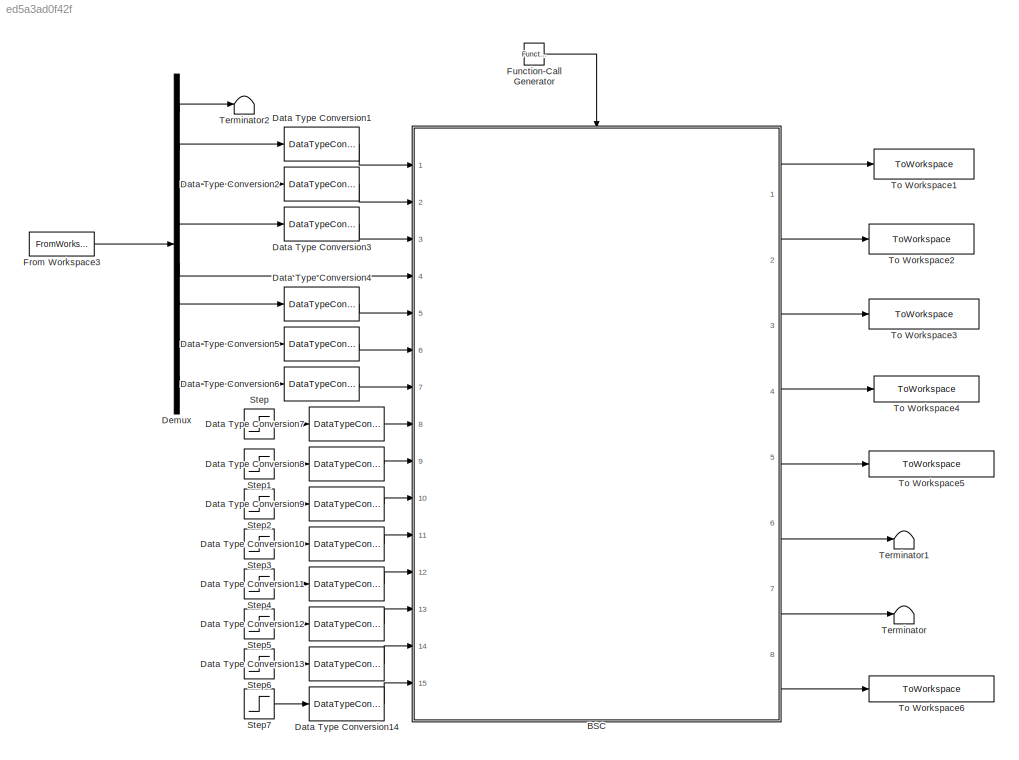
MODEL slx_ed5a3ad0f42f
KIND model
CONFIG AbsTol = auto
CONFIG FixedStep = step_size
CONFIG MaxStep = auto
CONFIG MinStep = auto
CONFIG RelTol = 1e-3
CONFIG SampleTimeConstraint = Unconstrained
CONFIG Solver = ode4
CONFIG SolverMode = Auto
CONFIG SolverName = ode4
CONFIG StartTime = 0.0
CONFIG StopTime = final_time
BLOCK [ModelReference] BSC
  CopyOfModelName = BSC.slx
  ModelNameDialog = BSC.slx
  ModelReferenceVersion = 1.220
  Ports = [15, 8, 0, 1]
  TriggerPortName = Trigger
  TriggerPortStatesWhenEnabling = held
  TriggerPortTriggerType = function-call
  Variant = off
BLOCK [DataTypeConversion] Data Type Conversion1
  OutDataTypeStr = uint8
  RndMeth = Floor
  SaturateOnIntegerOverflow = off
BLOCK [DataTypeConversion] Data Type Conversion10
  OutDataTypeStr = uint8
  RndMeth = Floor
  SaturateOnIntegerOverflow = off
BLOCK [DataTypeConversion] Data Type Conversion11
  OutDataTypeStr = uint8
  RndMeth = Floor
  SaturateOnIntegerOverflow = off
BLOCK [DataTypeConversion] Data Type Conversion12
  OutDataTypeStr = uint8
  RndMeth = Floor
  SaturateOnIntegerOverflow = off
BLOCK [DataTypeConversion] Data Type Conversion13
  OutDataTypeStr = uint8
  RndMeth = Floor
  SaturateOnIntegerOverflow = off
BLOCK [DataTypeConversion] Data Type Conversion14
  OutDataTypeStr = uint8
  RndMeth = Floor
  SaturateOnIntegerOverflow = off
BLOCK [DataTypeConversion] Data Type Conversion2
  OutDataTypeStr = uint8
  RndMeth = Floor
  SaturateOnIntegerOverflow = off
BLOCK [DataTypeConversion] Data Type Conversion3
  OutDataTypeStr = uint8
  RndMeth = Floor
  SaturateOnIntegerOverflow = off
BLOCK [DataTypeConversion] Data Type Conversion4
  OutDataTypeStr = uint8
  RndMeth = Floor
  SaturateOnIntegerOverflow = off
BLOCK [DataTypeConversion] Data Type Conversion5
  OutDataTypeStr = uint8
  RndMeth = Floor
  SaturateOnIntegerOverflow = off
BLOCK [DataTypeConversion] Data Type Conversion6
  OutDataTypeStr = uint8
  RndMeth = Floor
  SaturateOnIntegerOverflow = off
BLOCK [DataTypeConversion] Data Type Conversion7
  OutDataTypeStr = uint8
  RndMeth = Floor
  SaturateOnIntegerOverflow = off
BLOCK [DataTypeConversion] Data Type Conversion8
  OutDataTypeStr = uint8
  RndMeth = Floor
  SaturateOnIntegerOverflow = off
BLOCK [DataTypeConversion] Data Type Conversion9
  OutDataTypeStr = uint8
  RndMeth = Floor
  SaturateOnIntegerOverflow = off
BLOCK [Demux] Demux
  DisplayOption = bar
  Outputs = 8
  Ports = [1, 8]
BLOCK [FromWorkspace] From Workspace3
  SampleTime = 0
  VariableName = test_set
  ZeroCross = on
BLOCK [Reference] Function-Call Generator  REF=simulink/Ports &
Subsystems/Function-Call
Generator
  Ports = [0, 1]
  SourceBlock = simulink/Ports &\nSubsystems/Function-Call\nGenerator
  SourceType = Function-Call Generator
BLOCK [Step] Step
  After = 0
  Time = 0
  VectorParams1D = off
BLOCK [Step] Step1
  After = 0
  Time = 0
  VectorParams1D = off
BLOCK [Step] Step2
  After = 0
  Time = 0
  VectorParams1D = off
BLOCK [Step] Step3
  After = 0
  Time = 0
  VectorParams1D = off
BLOCK [Step] Step4
  After = 0
  Time = 0
  VectorParams1D = off
BLOCK [Step] Step5
  After = 0
  Time = 0
  VectorParams1D = off
BLOCK [Step] Step6
  After = 0
  Time = 0
  VectorParams1D = off
BLOCK [Step] Step7
  After = 0
  Time = 0
  VectorParams1D = off
BLOCK [Terminator] Terminator
BLOCK [Terminator] Terminator1
BLOCK [Terminator] Terminator2
BLOCK [ToWorkspace] To Workspace1
  FixptAsFi = on
  MaxDataPoints = inf
  Ports = [1]
  SampleTime = -1
  Save2DSignal = 3-D array (concatenate along third dimension)
  SaveFormat = Timeseries
  VariableName = CVTN_supply_signal
BLOCK [ToWorkspace] To Workspace2
  FixptAsFi = on
  MaxDataPoints = inf
  Ports = [1]
  SampleTime = -1
  Save2DSignal = 3-D array (concatenate along third dimension)
  SaveFormat = Timeseries
  VariableName = main_contactor_cmd
BLOCK [ToWorkspace] To Workspace3
  FixptAsFi = on
  MaxDataPoints = inf
  Ports = [1]
  SampleTime = -1
  Save2DSignal = 3-D array (concatenate along third dimension)
  SaveFormat = Timeseries
  VariableName = charger_contactor_cmd
BLOCK [ToWorkspace] To Workspace4
  FixptAsFi = on
  MaxDataPoints = inf
  Ports = [1]
  SampleTime = -1
  Save2DSignal = 3-D array (concatenate along third dimension)
  SaveFormat = Timeseries
  VariableName = sleep_mode
BLOCK [ToWorkspace] To Workspace5
  FixptAsFi = on
  MaxDataPoints = inf
  Ports = [1]
  SampleTime = -1
  Save2DSignal = 3-D array (concatenate along third dimension)
  SaveFormat = Timeseries
  VariableName = reason_to_open_contactor
BLOCK [ToWorkspace] To Workspace6
  FixptAsFi = on
  MaxDataPoints = inf
  Ports = [1]
  SampleTime = -1
  Save2DSignal = 3-D array (concatenate along third dimension)
  SaveFormat = Timeseries
  VariableName = fault_type
LINE BSC:1 -> To Workspace1:1
LINE BSC:2 -> To Workspace2:1
LINE BSC:3 -> To Workspace3:1
LINE BSC:4 -> To Workspace4:1
LINE BSC:5 -> To Workspace5:1
LINE BSC:6 -> Terminator1:1
LINE BSC:7 -> Terminator:1
LINE BSC:8 -> To Workspace6:1
LINE Data Type Conversion10:1 -> BSC:11
LINE Data Type Conversion11:1 -> BSC:12
LINE Data Type Conversion12:1 -> BSC:13
LINE Data Type Conversion13:1 -> BSC:14
LINE Data Type Conversion14:1 -> BSC:15
LINE Data Type Conversion1:1 -> BSC:1
LINE Data Type Conversion2:1 -> BSC:2
LINE Data Type Conversion3:1 -> BSC:3
LINE Data Type Conversion4:1 -> BSC:5
LINE Data Type Conversion5:1 -> BSC:6
LINE Data Type Conversion6:1 -> BSC:7
LINE Data Type Conversion7:1 -> BSC:8
LINE Data Type Conversion8:1 -> BSC:9
LINE Data Type Conversion9:1 -> BSC:10
LINE Demux:1 -> Terminator2:1
LINE Demux:2 -> Data Type Conversion1:1
LINE Demux:3 -> Data Type Conversion2:1
LINE Demux:4 -> Data Type Conversion3:1
LINE Demux:5 -> BSC:4
LINE Demux:6 -> Data Type Conversion4:1
LINE Demux:7 -> Data Type Conversion5:1
LINE Demux:8 -> Data Type Conversion6:1
LINE From Workspace3:1 -> Demux:1
LINE Function-Call Generator:1 -> BSC:trigger
LINE Step1:1 -> Data Type Conversion8:1
LINE Step2:1 -> Data Type Conversion9:1
LINE Step3:1 -> Data Type Conversion10:1
LINE Step4:1 -> Data Type Conversion11:1
LINE Step5:1 -> Data Type Conversion12:1
LINE Step6:1 -> Data Type Conversion13:1
LINE Step7:1 -> Data Type Conversion14:1
LINE Step:1 -> Data Type Conversion7:1
